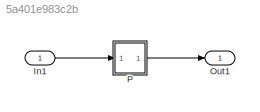
MODEL slx_5a401e983c2b
KIND model
CONFIG AbsTol = auto
CONFIG EnableMultiTasking = off
CONFIG FixedStep = auto
CONFIG MaxStep = auto
CONFIG MinStep = auto
CONFIG RelTol = 1e-3
CONFIG SampleTimeConstraint = Unconstrained
CONFIG Solver = FixedStepDiscrete
CONFIG SolverName = FixedStepDiscrete
CONFIG StartTime = 0.0
CONFIG StopTime = 10.0
BLOCK [Inport] In1
  IconDisplay = Port number
  OutDataTypeStr = single
  PortDimensions = [3,1]
BLOCK [Outport] Out1
  IconDisplay = Port number
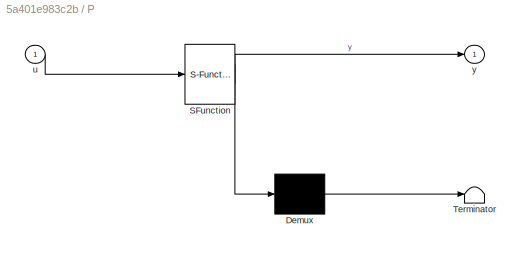
BLOCK [SubSystem] P
  ErrorFcn = Stateflow.Translate.translate
  PermitHierarchicalResolution = ExplicitOnly
  Ports = [1, 1]
  RequestExecContextInheritance = off
  SFBlockType = MATLAB Function
  TreatAsAtomicUnit = on
  Variant = off
BLOCK [Demux] P/ Demux 
  Outputs = 1
  Ports = [1, 1]
BLOCK [S-Function] P/ SFunction 
  EnableBusSupport = on
  FunctionName = sf_sfun
  PortCounts = [1 2]
  Ports = [1, 2]
  SFcnIsStateOwnerBlock = off
  SFunctionDeploymentMode = off
  Tag = Stateflow S-Function MatlabFunction_TestGen_any2 2
BLOCK [Terminator] P/ Terminator 
BLOCK [Inport] P/u
  IconDisplay = Port number
BLOCK [Outport] P/y
  IconDisplay = Port number
LINE In1:1 -> P:1
LINE P:1 -> Out1:1
CHART P states=1 transitions=1
  STATE_LABEL 'eML_blk_kernel()'
  STATE_LABEL 'SCRIPT:\nfunction y = fcn(u)\ny = any(u);'
